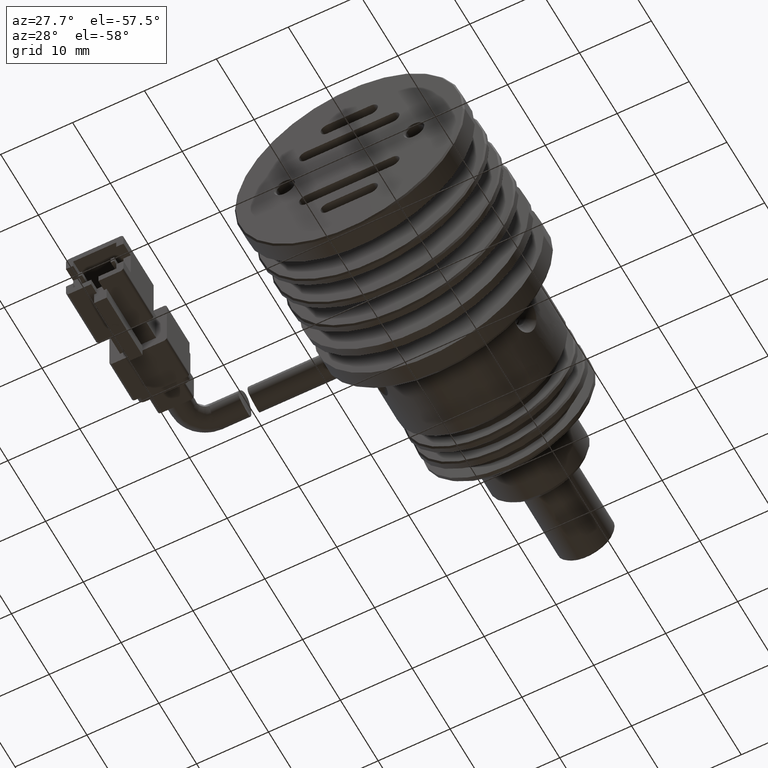
[diagram: clean part render]
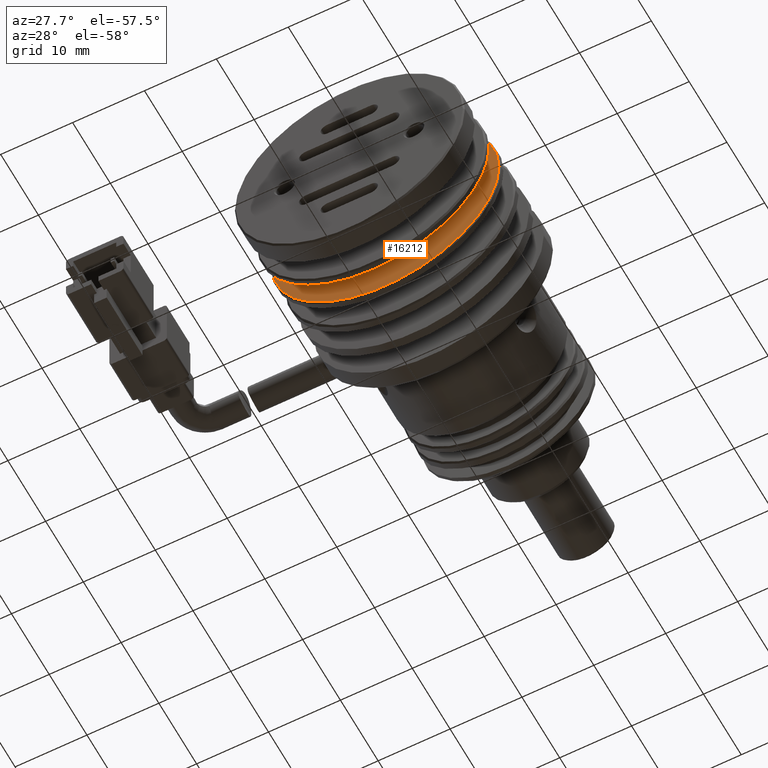
[diagram: same view with one face highlighted and labeled with its STEP entity id]
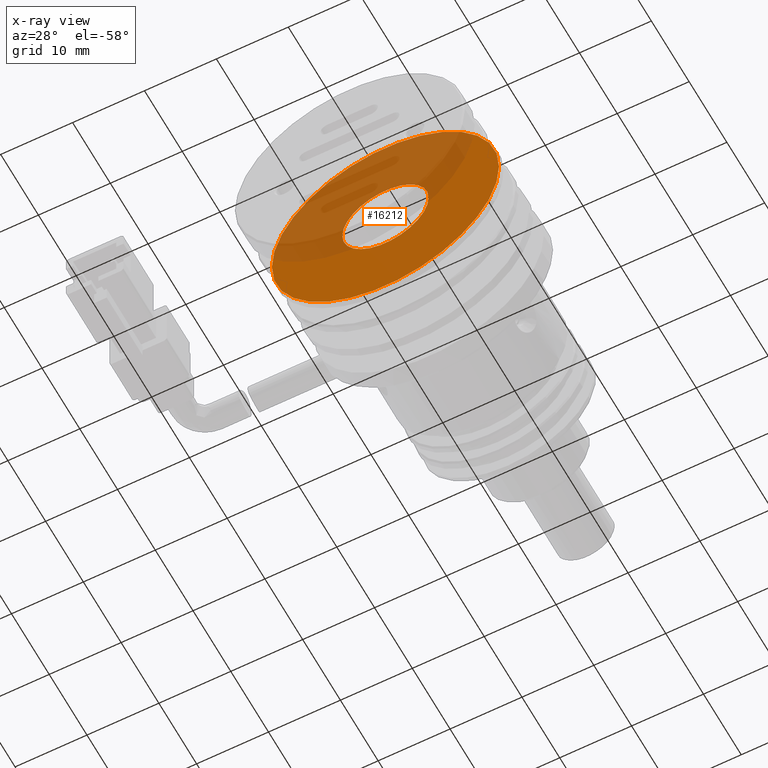
[diagram: x-ray of the same camera — body ghosted, the highlighted face saturated]
A machine part, auxiliary view. The second image highlights one B-rep face of the part: STEP entity #16212.
The next image is the same camera in x-ray: the body ghosted, the highlighted face saturated — about 47% of this face is hidden behind the body in this view.
In plain terms, the highlighted planar face has unit normal (-0, -1, -0).
Its self-contained STEP definition (entity closure, byte-faithful):
#389 = DIRECTION ( 'NONE',  ( 1.000000000000000000, 0.0000000000000000000, 0.0000000000000000000 ) ) ;
#874 = ORIENTED_EDGE ( 'NONE', *, *, #1276, .T. ) ;
#985 = AXIS2_PLACEMENT_3D ( 'NONE', #12056, #2901, #13586 ) ;
#1276 = EDGE_CURVE ( 'NONE', #2248, #14958, #16242, .T. ) ;
#1299 = EDGE_CURVE ( 'NONE', #9881, #12992, #10692, .T. ) ;
#1886 = CARTESIAN_POINT ( 'NONE',  ( 2.574933787635693700, -30.11493551001259700, -9.174035921659418900 ) ) ;
#1953 = DIRECTION ( 'NONE',  ( 1.156482317317871500E-016, 1.000000000000000000, -0.0000000000000000000 ) ) ;
#2015 = DIRECTION ( 'NONE',  ( -1.000000000000000000, 0.0000000000000000000, 0.0000000000000000000 ) ) ;
#2047 = CARTESIAN_POINT ( 'NONE',  ( 8.574933787635695000, -30.11493551001259700, -9.174035921659418900 ) ) ;
#2248 = VERTEX_POINT ( 'NONE', #2683 ) ;
#2683 = CARTESIAN_POINT ( 'NONE',  ( -3.425066212364306300, -30.11493551001259700, -9.174035921659418900 ) ) ;
#2901 = DIRECTION ( 'NONE',  ( 0.0000000000000000000, 1.000000000000000000, 0.0000000000000000000 ) ) ;
#3062 = ORIENTED_EDGE ( 'NONE', *, *, #13786, .T. ) ;
#3144 = CARTESIAN_POINT ( 'NONE',  ( 2.574933787635693700, -30.11493551001259700, -9.174035921659418900 ) ) ;
#3437 = AXIS2_PLACEMENT_3D ( 'NONE', #3144, #13844, #4703 ) ;
#4197 = CARTESIAN_POINT ( 'NONE',  ( 18.37493378763571500, -30.11493551001259700, -9.174035921659418900 ) ) ;
#4466 = FACE_BOUND ( 'NONE', #18220, .T. ) ;
#4561 = AXIS2_PLACEMENT_3D ( 'NONE', #16159, #6933, #17731 ) ;
#4703 = DIRECTION ( 'NONE',  ( -1.000000000000000000, 0.0000000000000000000, 0.0000000000000000000 ) ) ;
#4862 = AXIS2_PLACEMENT_3D ( 'NONE', #11080, #17294, #389 ) ;
#4882 = ORIENTED_EDGE ( 'NONE', *, *, #1299, .F. ) ;
#5468 = ORIENTED_EDGE ( 'NONE', *, *, #5692, .F. ) ;
#5692 = EDGE_CURVE ( 'NONE', #12992, #9881, #18431, .T. ) ;
#6933 = DIRECTION ( 'NONE',  ( -1.156482317317871500E-016, -1.000000000000000000, -0.0000000000000000000 ) ) ;
#9881 = VERTEX_POINT ( 'NONE', #4197 ) ;
#10692 = CIRCLE ( 'NONE', #4862, 15.80000000000002200 ) ;
#11080 = CARTESIAN_POINT ( 'NONE',  ( 2.574933787635692400, -30.11493551001259700, -9.174035921659418900 ) ) ;
#12056 = CARTESIAN_POINT ( 'NONE',  ( 2.574933787635692400, -30.11493551001259700, -9.174035921659418900 ) ) ;
#12092 = FACE_OUTER_BOUND ( 'NONE', #16015, .T. ) ;
#12992 = VERTEX_POINT ( 'NONE', #19085 ) ;
#13586 = DIRECTION ( 'NONE',  ( 1.000000000000000000, 0.0000000000000000000, 0.0000000000000000000 ) ) ;
#13786 = EDGE_CURVE ( 'NONE', #14958, #2248, #17891, .T. ) ;
#13844 = DIRECTION ( 'NONE',  ( 1.156482317317871500E-016, 1.000000000000000000, -0.0000000000000000000 ) ) ;
#14958 = VERTEX_POINT ( 'NONE', #2047 ) ;
#16015 = EDGE_LOOP ( 'NONE', ( #4882, #5468 ) ) ;
#16087 = PLANE ( 'NONE',  #4561 ) ;
#16159 = CARTESIAN_POINT ( 'NONE',  ( 18.57493378763569300, -30.11493551001260000, -9.174035921659418900 ) ) ;
#16212 = ADVANCED_FACE ( 'NONE', ( #4466, #12092 ), #16087, .T. ) ;
#16242 = CIRCLE ( 'NONE', #18649, 6.000000000000000000 ) ;
#17294 = DIRECTION ( 'NONE',  ( 0.0000000000000000000, 1.000000000000000000, 0.0000000000000000000 ) ) ;
#17731 = DIRECTION ( 'NONE',  ( -1.000000000000000000, 1.156482317317871500E-016, 0.0000000000000000000 ) ) ;
#17891 = CIRCLE ( 'NONE', #3437, 6.000000000000000000 ) ;
#18220 = EDGE_LOOP ( 'NONE', ( #874, #3062 ) ) ;
#18431 = CIRCLE ( 'NONE', #985, 15.80000000000002200 ) ;
#18649 = AXIS2_PLACEMENT_3D ( 'NONE', #1886, #1953, #2015 ) ;
#19085 = CARTESIAN_POINT ( 'NONE',  ( -13.22506621236433400, -30.11493551001259700, -9.174035921659420700 ) ) ;